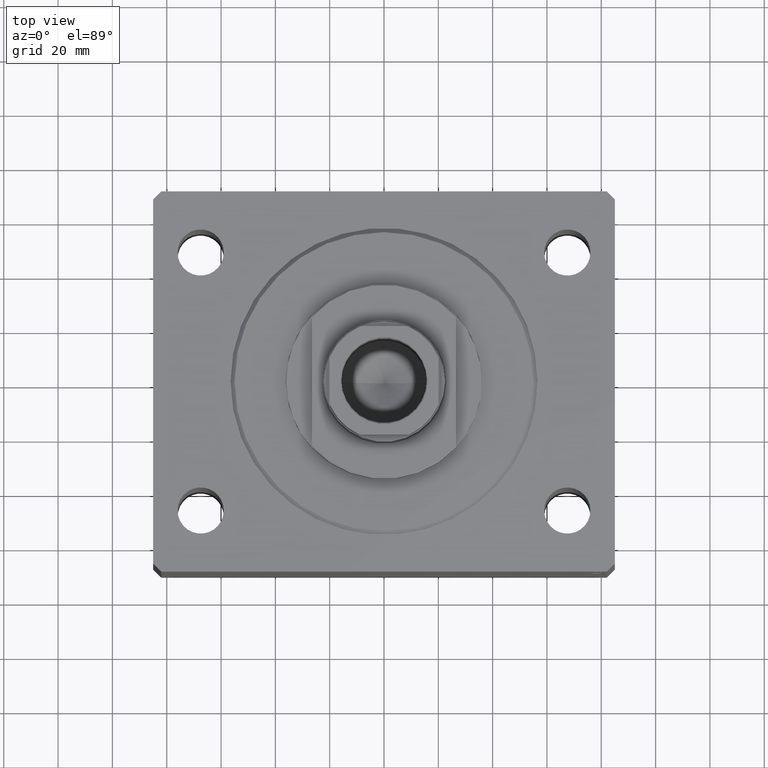
[diagram: clean part render]
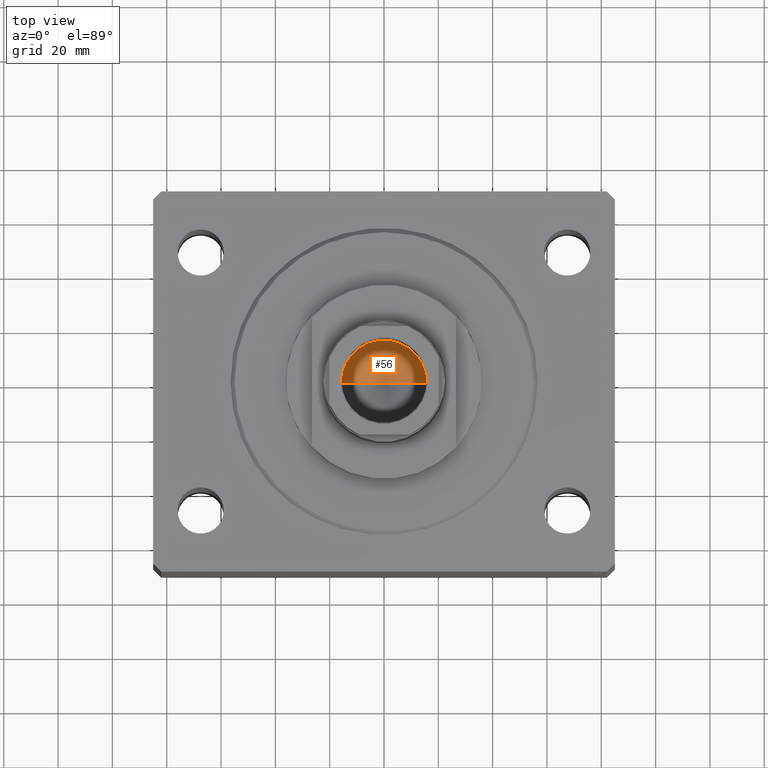
[diagram: same view with one face highlighted and labeled with its STEP entity id]
A machine part, top view. The second image highlights one B-rep face of the part: STEP entity #56.
In plain terms, the highlighted conical surface has half-angle 59 deg.
Its self-contained STEP definition (entity closure, byte-faithful):
#56 = ADVANCED_FACE ( 'NONE', ( #23070 ), #32301, .F. ) ;
#805 = CARTESIAN_POINT ( 'NONE',  ( 15.74999999999998934, 0.000000000000000000, 71.10000000000002274 ) ) ;
#3207 = VERTEX_POINT ( 'NONE', #805 ) ;
#3893 = VECTOR ( 'NONE', #14066, 1000.000000000000000 ) ;
#9525 = AXIS2_PLACEMENT_3D ( 'NONE', #28870, #32927, #22552 ) ;
#9575 = VERTEX_POINT ( 'NONE', #29519 ) ;
#10154 = EDGE_LOOP ( 'NONE', ( #19630, #36958, #37524 ) ) ;
#10459 = CARTESIAN_POINT ( 'NONE',  ( 15.74999999999998934, 0.000000000000000000, 71.10000000000002274 ) ) ;
#12478 = DIRECTION ( 'NONE',  ( -0.000000000000000000, -0.000000000000000000, 1.000000000000000000 ) ) ;
#14066 = DIRECTION ( 'NONE',  ( 0.8571673007021118895, 0.000000000000000000, 0.5150380749100549327 ) ) ;
#15337 = EDGE_CURVE ( 'NONE', #9575, #3207, #41571, .T. ) ;
#15383 = VECTOR ( 'NONE', #17906, 1000.000000000000000 ) ;
#16081 = DIRECTION ( 'NONE',  ( 1.000000000000000000, 0.000000000000000000, 0.000000000000000000 ) ) ;
#17536 = EDGE_CURVE ( 'NONE', #9575, #27581, #34831, .T. ) ;
#17906 = DIRECTION ( 'NONE',  ( -0.8571673007021118895, 1.049727191138618079E-16, 0.5150380749100549327 ) ) ;
#19630 = ORIENTED_EDGE ( 'NONE', *, *, #17536, .F. ) ;
#22552 = DIRECTION ( 'NONE',  ( 1.000000000000000000, 0.000000000000000000, 0.000000000000000000 ) ) ;
#23070 = FACE_OUTER_BOUND ( 'NONE', #10154, .T. ) ;
#25648 = CARTESIAN_POINT ( 'NONE',  ( -15.74999999999998934, 1.928818708657080161E-15, 71.10000000000002274 ) ) ;
#27581 = VERTEX_POINT ( 'NONE', #25648 ) ;
#28002 = AXIS2_PLACEMENT_3D ( 'NONE', #39763, #12478, #16081 ) ;
#28870 = CARTESIAN_POINT ( 'NONE',  ( 0.000000000000000000, 0.000000000000000000, 71.10000000000002274 ) ) ;
#29519 = CARTESIAN_POINT ( 'NONE',  ( -1.480675244360640996E-14, 0.000000000000000000, 61.63644525031594412 ) ) ;
#32301 = CONICAL_SURFACE ( 'NONE', #28002, 15.74999999999998934, 1.029744258676653645 ) ;
#32927 = DIRECTION ( 'NONE',  ( -0.000000000000000000, -0.000000000000000000, 1.000000000000000000 ) ) ;
#34022 = CIRCLE ( 'NONE', #9525, 15.74999999999998934 ) ;
#34831 = LINE ( 'NONE', #35492, #15383 ) ;
#35492 = CARTESIAN_POINT ( 'NONE',  ( -15.74999999999998934, 1.928818708657080161E-15, 71.10000000000002274 ) ) ;
#36958 = ORIENTED_EDGE ( 'NONE', *, *, #15337, .T. ) ;
#37524 = ORIENTED_EDGE ( 'NONE', *, *, #42500, .T. ) ;
#39763 = CARTESIAN_POINT ( 'NONE',  ( 0.000000000000000000, 0.000000000000000000, 71.10000000000002274 ) ) ;
#41571 = LINE ( 'NONE', #10459, #3893 ) ;
#42500 = EDGE_CURVE ( 'NONE', #3207, #27581, #34022, .T. ) ;